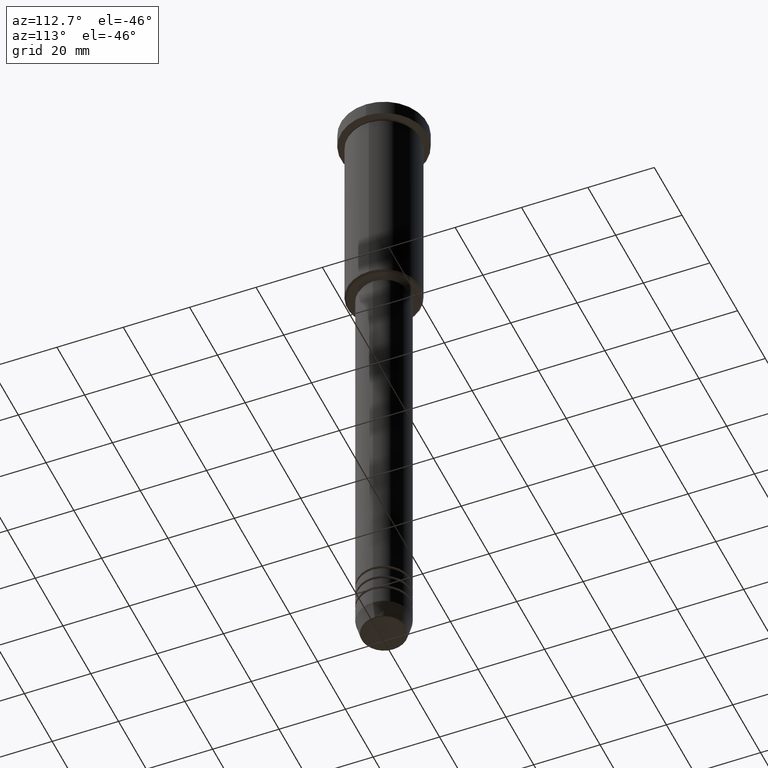
[diagram: clean part render]
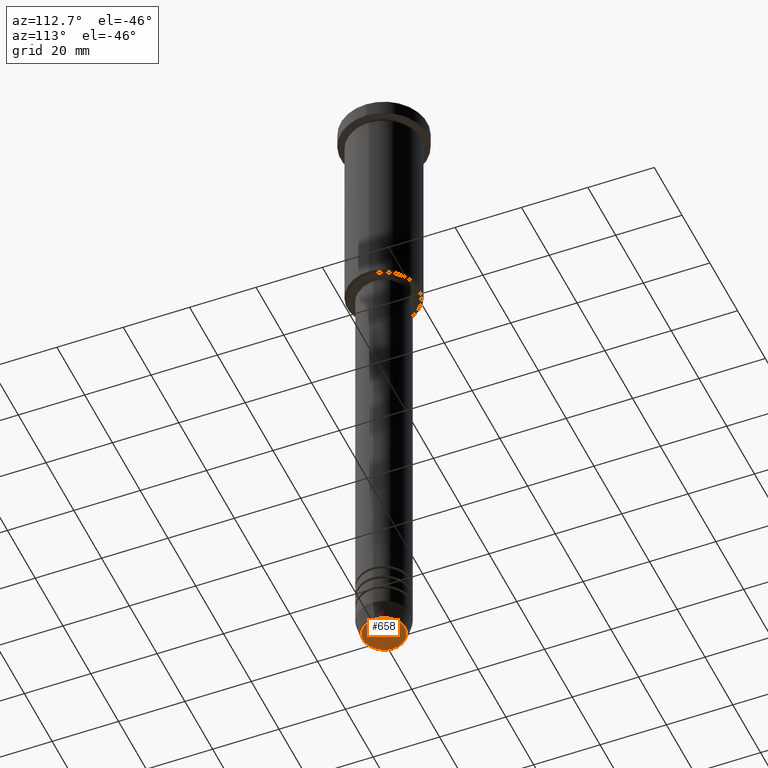
[diagram: same view with one face highlighted and labeled with its STEP entity id]
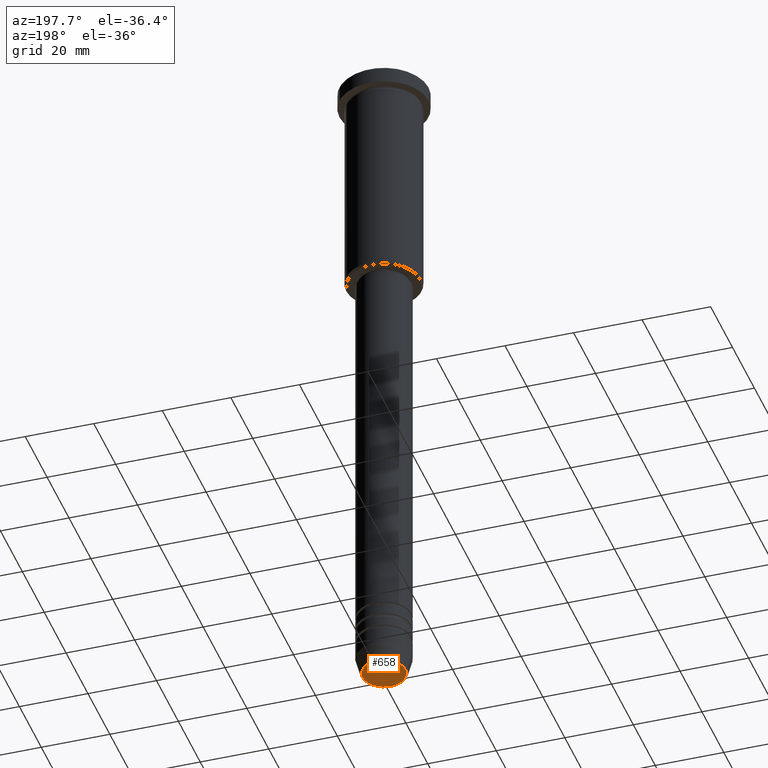
[diagram: same view with one face highlighted and labeled with its STEP entity id]
A machine part, auxiliary view. The second image highlights one B-rep face of the part: STEP entity #658.
A second angle (auxiliary view) of the same face is appended — the face is thin or edge-on in the first view.
In plain terms, the highlighted planar face has unit normal (0, -0, 1).
Its self-contained STEP definition (entity closure, byte-faithful):
#55 = CARTESIAN_POINT ( 'NONE',  ( 0.000000000000000000, 0.000000000000000000, -200.0000000000000000 ) ) ;
#95 = CIRCLE ( 'NONE', #439, 6.276590543854911886 ) ;
#146 = CARTESIAN_POINT ( 'NONE',  ( -6.276590543854911886, 7.982336011935132188E-16, -200.0000000000000000 ) ) ;
#202 = PLANE ( 'NONE',  #736 ) ;
#208 = VERTEX_POINT ( 'NONE', #146 ) ;
#265 = CARTESIAN_POINT ( 'NONE',  ( 6.276590543854911886, 0.000000000000000000, -200.0000000000000000 ) ) ;
#287 = EDGE_CURVE ( 'NONE', #419, #208, #95, .T. ) ;
#419 = VERTEX_POINT ( 'NONE', #265 ) ;
#435 = CARTESIAN_POINT ( 'NONE',  ( 0.000000000000000000, 0.000000000000000000, -200.0000000000000000 ) ) ;
#439 = AXIS2_PLACEMENT_3D ( 'NONE', #55, #586, #488 ) ;
#488 = DIRECTION ( 'NONE',  ( 1.000000000000000000, 0.000000000000000000, 0.000000000000000000 ) ) ;
#494 = CIRCLE ( 'NONE', #654, 6.276590543854911886 ) ;
#563 = DIRECTION ( 'NONE',  ( 0.000000000000000000, -0.000000000000000000, 1.000000000000000000 ) ) ;
#586 = DIRECTION ( 'NONE',  ( 0.000000000000000000, 0.000000000000000000, -1.000000000000000000 ) ) ;
#654 = AXIS2_PLACEMENT_3D ( 'NONE', #435, #1118, #767 ) ;
#657 = FACE_OUTER_BOUND ( 'NONE', #688, .T. ) ;
#658 = ADVANCED_FACE ( 'NONE', ( #657 ), #202, .F. ) ;
#688 = EDGE_LOOP ( 'NONE', ( #909, #1131 ) ) ;
#736 = AXIS2_PLACEMENT_3D ( 'NONE', #844, #563, #1114 ) ;
#767 = DIRECTION ( 'NONE',  ( 1.000000000000000000, 0.000000000000000000, 0.000000000000000000 ) ) ;
#842 = EDGE_CURVE ( 'NONE', #208, #419, #494, .T. ) ;
#844 = CARTESIAN_POINT ( 'NONE',  ( 0.000000000000000000, 0.000000000000000000, -200.0000000000000000 ) ) ;
#909 = ORIENTED_EDGE ( 'NONE', *, *, #287, .T. ) ;
#1114 = DIRECTION ( 'NONE',  ( 1.000000000000000000, 0.000000000000000000, 0.000000000000000000 ) ) ;
#1118 = DIRECTION ( 'NONE',  ( 0.000000000000000000, 0.000000000000000000, -1.000000000000000000 ) ) ;
#1131 = ORIENTED_EDGE ( 'NONE', *, *, #842, .T. ) ;